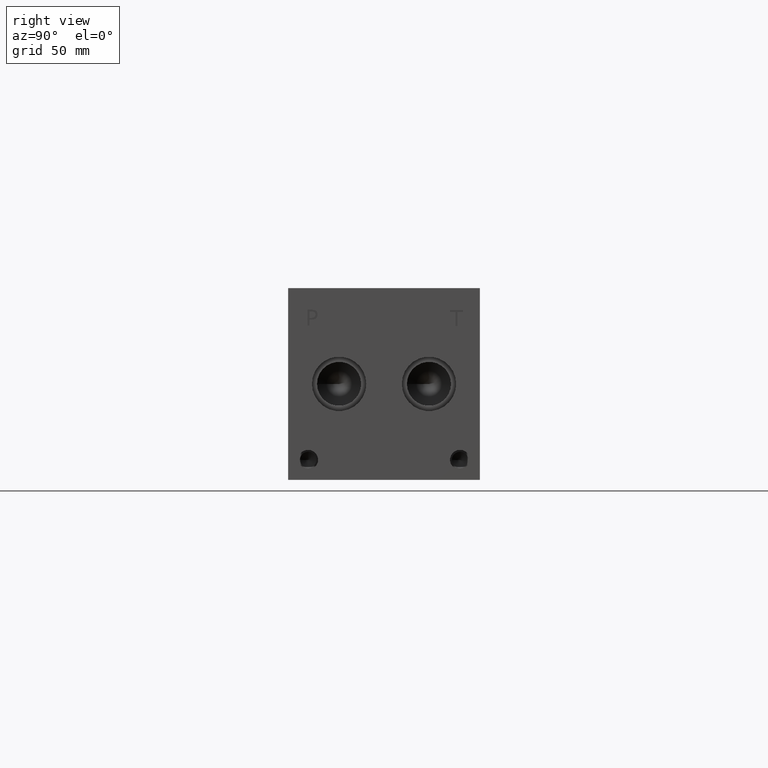
[diagram: clean part render]
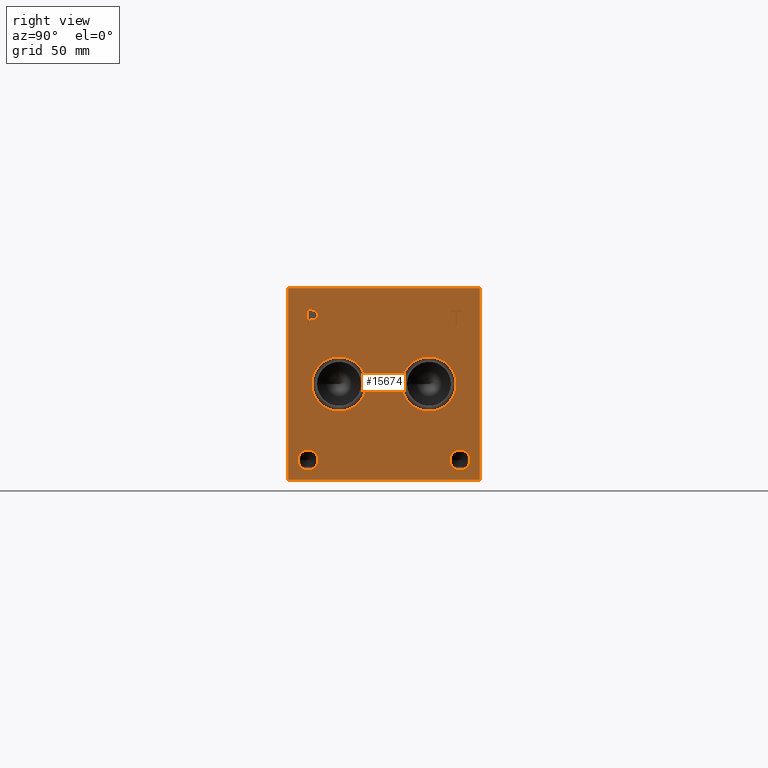
[diagram: same view with one face highlighted and labeled with its STEP entity id]
A machine part, right view. The second image highlights one B-rep face of the part: STEP entity #15674.
In plain terms, the highlighted planar face has unit normal (1, 0, 0).
Its self-contained STEP definition (entity closure, byte-faithful):
#211=CIRCLE('',#16333,10.795);
#212=CIRCLE('',#16334,10.795);
#213=CIRCLE('',#16335,10.795);
#214=CIRCLE('',#16336,10.795);
#215=CIRCLE('',#16337,3.9624);
#216=CIRCLE('',#16338,3.9624);
#217=CIRCLE('',#16339,3.9624);
#218=CIRCLE('',#16340,3.9624);
#639=FACE_BOUND('',#2626,.T.);
#640=FACE_BOUND('',#2627,.T.);
#641=FACE_BOUND('',#2628,.T.);
#642=FACE_BOUND('',#2629,.T.);
#643=FACE_BOUND('',#2630,.T.);
#644=FACE_BOUND('',#2631,.T.);
#1101=PLANE('',#16332);
#1739=FACE_OUTER_BOUND('',#2625,.T.);
#2625=EDGE_LOOP('',(#12997,#12998,#12999,#13000));
#2626=EDGE_LOOP('',(#13001,#13002));
#2627=EDGE_LOOP('',(#13003,#13004));
#2628=EDGE_LOOP('',(#13005,#13006));
#2629=EDGE_LOOP('',(#13007,#13008));
#2630=EDGE_LOOP('',(#13009,#13010,#13011,#13012,#13013,#13014,#13015,#13016));
#2631=EDGE_LOOP('',(#13017,#13018,#13019,#13020,#13021,#13022,#13023,#13024,
#13025));
#3250=LINE('',#22581,#4649);
#4099=LINE('',#26033,#5498);
#4102=LINE('',#26039,#5501);
#4105=LINE('',#26045,#5504);
#4108=LINE('',#26051,#5507);
#4111=LINE('',#26057,#5510);
#4115=LINE('',#26099,#5514);
#4116=LINE('',#26101,#5515);
#4117=LINE('',#26102,#5516);
#4118=LINE('',#26121,#5517);
#4119=LINE('',#26123,#5518);
#4120=LINE('',#26125,#5519);
#4121=LINE('',#26127,#5520);
#4122=LINE('',#26129,#5521);
#4123=LINE('',#26131,#5522);
#4124=LINE('',#26133,#5523);
#4125=LINE('',#26134,#5524);
#4649=VECTOR('',#17351,10.);
#5498=VECTOR('',#18830,10.);
#5501=VECTOR('',#18835,10.);
#5504=VECTOR('',#18840,10.);
#5507=VECTOR('',#18845,10.);
#5510=VECTOR('',#18850,10.);
#5514=VECTOR('',#18858,10.);
#5515=VECTOR('',#18859,10.);
#5516=VECTOR('',#18860,10.);
#5517=VECTOR('',#18877,10.);
#5518=VECTOR('',#18878,10.);
#5519=VECTOR('',#18879,10.);
#5520=VECTOR('',#18880,10.);
#5521=VECTOR('',#18881,10.);
#5522=VECTOR('',#18882,10.);
#5523=VECTOR('',#18883,10.);
#5524=VECTOR('',#18884,10.);
#6167=B_SPLINE_CURVE_WITH_KNOTS('',2,(#26000,#26001,#26002,#26003),
 .UNSPECIFIED.,.F.,.F.,(3,1,3),(0.,1.,2.),.UNSPECIFIED.);
#6169=B_SPLINE_CURVE_WITH_KNOTS('',2,(#26021,#26022,#26023,#26024),
 .UNSPECIFIED.,.F.,.F.,(3,1,3),(0.,1.,2.),.UNSPECIFIED.);
#6171=B_SPLINE_CURVE_WITH_KNOTS('',2,(#26070,#26071,#26072,#26073),
 .UNSPECIFIED.,.F.,.F.,(3,1,3),(0.,1.,2.),.UNSPECIFIED.);
#6173=B_SPLINE_CURVE_WITH_KNOTS('',2,(#26088,#26089,#26090,#26091),
 .UNSPECIFIED.,.F.,.F.,(3,1,3),(0.,1.,2.),.UNSPECIFIED.);
#6504=VERTEX_POINT('',#22578);
#6505=VERTEX_POINT('',#22580);
#7219=VERTEX_POINT('',#25998);
#7220=VERTEX_POINT('',#25999);
#7223=VERTEX_POINT('',#26020);
#7225=VERTEX_POINT('',#26032);
#7227=VERTEX_POINT('',#26038);
#7229=VERTEX_POINT('',#26044);
#7231=VERTEX_POINT('',#26050);
#7233=VERTEX_POINT('',#26056);
#7235=VERTEX_POINT('',#26069);
#7237=VERTEX_POINT('',#26098);
#7238=VERTEX_POINT('',#26100);
#7239=VERTEX_POINT('',#26103);
#7240=VERTEX_POINT('',#26104);
#7241=VERTEX_POINT('',#26107);
#7242=VERTEX_POINT('',#26108);
#7243=VERTEX_POINT('',#26111);
#7244=VERTEX_POINT('',#26112);
#7245=VERTEX_POINT('',#26115);
#7246=VERTEX_POINT('',#26116);
#7247=VERTEX_POINT('',#26119);
#7248=VERTEX_POINT('',#26120);
#7249=VERTEX_POINT('',#26122);
#7250=VERTEX_POINT('',#26124);
#7251=VERTEX_POINT('',#26126);
#7252=VERTEX_POINT('',#26128);
#7253=VERTEX_POINT('',#26130);
#7254=VERTEX_POINT('',#26132);
#8201=EDGE_CURVE('',#6504,#6505,#3250,.T.);
#9261=EDGE_CURVE('',#7219,#7220,#6167,.T.);
#9265=EDGE_CURVE('',#7223,#7219,#6169,.T.);
#9268=EDGE_CURVE('',#7225,#7223,#4099,.T.);
#9271=EDGE_CURVE('',#7227,#7225,#4102,.T.);
#9274=EDGE_CURVE('',#7229,#7227,#4105,.T.);
#9277=EDGE_CURVE('',#7231,#7229,#4108,.T.);
#9280=EDGE_CURVE('',#7233,#7231,#4111,.T.);
#9283=EDGE_CURVE('',#7235,#7233,#6171,.T.);
#9286=EDGE_CURVE('',#7220,#7235,#6173,.T.);
#9288=EDGE_CURVE('',#6504,#7237,#4115,.T.);
#9289=EDGE_CURVE('',#7237,#7238,#4116,.T.);
#9290=EDGE_CURVE('',#6505,#7238,#4117,.T.);
#9291=EDGE_CURVE('',#7239,#7240,#211,.T.);
#9292=EDGE_CURVE('',#7240,#7239,#212,.T.);
#9293=EDGE_CURVE('',#7241,#7242,#213,.T.);
#9294=EDGE_CURVE('',#7242,#7241,#214,.T.);
#9295=EDGE_CURVE('',#7243,#7244,#215,.T.);
#9296=EDGE_CURVE('',#7244,#7243,#216,.T.);
#9297=EDGE_CURVE('',#7245,#7246,#217,.T.);
#9298=EDGE_CURVE('',#7246,#7245,#218,.T.);
#9299=EDGE_CURVE('',#7247,#7248,#4118,.T.);
#9300=EDGE_CURVE('',#7248,#7249,#4119,.T.);
#9301=EDGE_CURVE('',#7249,#7250,#4120,.T.);
#9302=EDGE_CURVE('',#7250,#7251,#4121,.T.);
#9303=EDGE_CURVE('',#7251,#7252,#4122,.T.);
#9304=EDGE_CURVE('',#7252,#7253,#4123,.T.);
#9305=EDGE_CURVE('',#7253,#7254,#4124,.T.);
#9306=EDGE_CURVE('',#7254,#7247,#4125,.T.);
#12997=ORIENTED_EDGE('',*,*,#9288,.T.);
#12998=ORIENTED_EDGE('',*,*,#9289,.T.);
#12999=ORIENTED_EDGE('',*,*,#9290,.F.);
#13000=ORIENTED_EDGE('',*,*,#8201,.F.);
#13001=ORIENTED_EDGE('',*,*,#9291,.T.);
#13002=ORIENTED_EDGE('',*,*,#9292,.T.);
#13003=ORIENTED_EDGE('',*,*,#9293,.T.);
#13004=ORIENTED_EDGE('',*,*,#9294,.T.);
#13005=ORIENTED_EDGE('',*,*,#9295,.T.);
#13006=ORIENTED_EDGE('',*,*,#9296,.T.);
#13007=ORIENTED_EDGE('',*,*,#9297,.T.);
#13008=ORIENTED_EDGE('',*,*,#9298,.T.);
#13009=ORIENTED_EDGE('',*,*,#9299,.T.);
#13010=ORIENTED_EDGE('',*,*,#9300,.T.);
#13011=ORIENTED_EDGE('',*,*,#9301,.T.);
#13012=ORIENTED_EDGE('',*,*,#9302,.T.);
#13013=ORIENTED_EDGE('',*,*,#9303,.T.);
#13014=ORIENTED_EDGE('',*,*,#9304,.T.);
#13015=ORIENTED_EDGE('',*,*,#9305,.T.);
#13016=ORIENTED_EDGE('',*,*,#9306,.T.);
#13017=ORIENTED_EDGE('',*,*,#9261,.T.);
#13018=ORIENTED_EDGE('',*,*,#9286,.T.);
#13019=ORIENTED_EDGE('',*,*,#9283,.T.);
#13020=ORIENTED_EDGE('',*,*,#9280,.T.);
#13021=ORIENTED_EDGE('',*,*,#9277,.T.);
#13022=ORIENTED_EDGE('',*,*,#9274,.T.);
#13023=ORIENTED_EDGE('',*,*,#9271,.T.);
#13024=ORIENTED_EDGE('',*,*,#9268,.T.);
#13025=ORIENTED_EDGE('',*,*,#9265,.T.);
#15674=ADVANCED_FACE('',(#1739,#639,#640,#641,#642,#643,#644),#1101,.T.);
#16332=AXIS2_PLACEMENT_3D('',#26097,#18856,#18857);
#16333=AXIS2_PLACEMENT_3D('',#26105,#18861,#18862);
#16334=AXIS2_PLACEMENT_3D('',#26106,#18863,#18864);
#16335=AXIS2_PLACEMENT_3D('',#26109,#18865,#18866);
#16336=AXIS2_PLACEMENT_3D('',#26110,#18867,#18868);
#16337=AXIS2_PLACEMENT_3D('',#26113,#18869,#18870);
#16338=AXIS2_PLACEMENT_3D('',#26114,#18871,#18872);
#16339=AXIS2_PLACEMENT_3D('',#26117,#18873,#18874);
#16340=AXIS2_PLACEMENT_3D('',#26118,#18875,#18876);
#17351=DIRECTION('',(0.,0.,1.));
#18830=DIRECTION('',(0.,1.,0.));
#18835=DIRECTION('',(0.,0.,1.));
#18840=DIRECTION('',(0.,-1.,0.));
#18845=DIRECTION('',(0.,0.,-1.));
#18850=DIRECTION('',(0.,-1.,0.));
#18856=DIRECTION('center_axis',(1.,0.,0.));
#18857=DIRECTION('ref_axis',(0.,1.,0.));
#18858=DIRECTION('',(0.,1.,0.));
#18859=DIRECTION('',(0.,0.,1.));
#18860=DIRECTION('',(0.,1.,0.));
#18861=DIRECTION('center_axis',(-1.,0.,0.));
#18862=DIRECTION('ref_axis',(0.,1.,0.));
#18863=DIRECTION('center_axis',(-1.,0.,0.));
#18864=DIRECTION('ref_axis',(0.,1.,0.));
#18865=DIRECTION('center_axis',(-1.,0.,0.));
#18866=DIRECTION('ref_axis',(0.,1.,0.));
#18867=DIRECTION('center_axis',(-1.,0.,0.));
#18868=DIRECTION('ref_axis',(0.,1.,0.));
#18869=DIRECTION('center_axis',(-1.,0.,0.));
#18870=DIRECTION('ref_axis',(0.,1.,0.));
#18871=DIRECTION('center_axis',(-1.,0.,0.));
#18872=DIRECTION('ref_axis',(0.,1.,0.));
#18873=DIRECTION('center_axis',(-1.,0.,0.));
#18874=DIRECTION('ref_axis',(0.,1.,0.));
#18875=DIRECTION('center_axis',(-1.,0.,0.));
#18876=DIRECTION('ref_axis',(0.,1.,0.));
#18877=DIRECTION('',(0.,-1.,0.));
#18878=DIRECTION('',(0.,0.,1.));
#18879=DIRECTION('',(0.,-1.,0.));
#18880=DIRECTION('',(0.,0.,1.));
#18881=DIRECTION('',(0.,1.,0.));
#18882=DIRECTION('',(0.,0.,-1.));
#18883=DIRECTION('',(0.,-1.,0.));
#18884=DIRECTION('',(0.,0.,-1.));
#22578=CARTESIAN_POINT('',(269.875,0.,0.));
#22580=CARTESIAN_POINT('',(269.875,0.,76.2));
#22581=CARTESIAN_POINT('',(269.875,0.,0.));
#25998=CARTESIAN_POINT('',(269.875,10.9363672023594,67.1677681439707));
#25999=CARTESIAN_POINT('',(269.875,11.692809654532,65.649737372604));
#26000=CARTESIAN_POINT('Ctrl Pts',(269.875,10.9363672023594,67.1677681439707));
#26001=CARTESIAN_POINT('Ctrl Pts',(269.875,11.2914320268486,66.9259123939564));
#26002=CARTESIAN_POINT('Ctrl Pts',(269.875,11.692809654532,66.1797616758269));
#26003=CARTESIAN_POINT('Ctrl Pts',(269.875,11.692809654532,65.649737372604));
#26020=CARTESIAN_POINT('',(269.875,9.27425215438831,67.5639999046326));
#26021=CARTESIAN_POINT('Ctrl Pts',(269.875,9.27425215438831,67.5639999046326));
#26022=CARTESIAN_POINT('Ctrl Pts',(269.875,9.84029752676236,67.5639999046326));
#26023=CARTESIAN_POINT('Ctrl Pts',(269.875,10.632761048086,67.3787486918556));
#26024=CARTESIAN_POINT('Ctrl Pts',(269.875,10.9363672023594,67.1677681439707));
#26032=CARTESIAN_POINT('',(269.875,7.67903337769779,67.5639999046326));
#26033=CARTESIAN_POINT('',(269.875,3.83951668884889,67.5639999046326));
#26038=CARTESIAN_POINT('',(269.875,7.67903337769779,61.214));
#26039=CARTESIAN_POINT('',(269.875,7.67903337769779,30.607));
#26044=CARTESIAN_POINT('',(269.875,8.52295556923729,61.214));
#26045=CARTESIAN_POINT('',(269.875,4.26147778461864,61.214));
#26050=CARTESIAN_POINT('',(269.875,8.52295556923729,63.5810988299279));
#26051=CARTESIAN_POINT('',(269.875,8.52295556923729,31.7905494149639));
#26056=CARTESIAN_POINT('',(269.875,9.23823108523723,63.5810988299279));
#26057=CARTESIAN_POINT('',(269.875,4.61911554261861,63.5810988299279));
#26069=CARTESIAN_POINT('',(269.875,11.1370560162011,64.2397698086904));
#26070=CARTESIAN_POINT('Ctrl Pts',(269.875,11.1370560162011,64.2397698086904));
#26071=CARTESIAN_POINT('Ctrl Pts',(269.875,10.8077205268198,63.9155801863307));
#26072=CARTESIAN_POINT('Ctrl Pts',(269.875,9.91748553208609,63.5810988299279));
#26073=CARTESIAN_POINT('Ctrl Pts',(269.875,9.23823108523723,63.5810988299279));
#26088=CARTESIAN_POINT('Ctrl Pts',(269.875,11.692809654532,65.649737372604));
#26089=CARTESIAN_POINT('Ctrl Pts',(269.875,11.692809654532,65.2380680108774));
#26090=CARTESIAN_POINT('Ctrl Pts',(269.875,11.3994952343018,64.4970631597695));
#26091=CARTESIAN_POINT('Ctrl Pts',(269.875,11.1370560162011,64.2397698086904));
#26097=CARTESIAN_POINT('Origin',(269.875,0.,0.));
#26098=CARTESIAN_POINT('',(269.875,76.2,0.));
#26099=CARTESIAN_POINT('',(269.875,0.,0.));
#26100=CARTESIAN_POINT('',(269.875,76.2,76.2));
#26101=CARTESIAN_POINT('',(269.875,76.2,0.));
#26102=CARTESIAN_POINT('',(269.875,0.,76.2));
#26103=CARTESIAN_POINT('',(269.875,31.0388,38.1));
#26104=CARTESIAN_POINT('',(269.875,9.4488,38.1));
#26105=CARTESIAN_POINT('Origin',(269.875,20.2438,38.1));
#26106=CARTESIAN_POINT('Origin',(269.875,20.2438,38.1));
#26107=CARTESIAN_POINT('',(269.875,66.7512,38.1));
#26108=CARTESIAN_POINT('',(269.875,45.1612,38.1));
#26109=CARTESIAN_POINT('Origin',(269.875,55.9562,38.1));
#26110=CARTESIAN_POINT('Origin',(269.875,55.9562,38.1));
#26111=CARTESIAN_POINT('',(269.875,11.8872,7.9248));
#26112=CARTESIAN_POINT('',(269.875,3.9624,7.9248));
#26113=CARTESIAN_POINT('Origin',(269.875,7.9248,7.9248));
#26114=CARTESIAN_POINT('Origin',(269.875,7.9248,7.9248));
#26115=CARTESIAN_POINT('',(269.875,72.2376,7.9248));
#26116=CARTESIAN_POINT('',(269.875,64.3128,7.9248));
#26117=CARTESIAN_POINT('Origin',(269.875,68.2752,7.9248));
#26118=CARTESIAN_POINT('Origin',(269.875,68.2752,7.9248));
#26119=CARTESIAN_POINT('',(269.875,67.262915271453,61.11875));
#26120=CARTESIAN_POINT('',(269.875,66.4189930799135,61.11875));
#26121=CARTESIAN_POINT('',(269.875,33.6314576357265,61.11875));
#26122=CARTESIAN_POINT('',(269.875,66.4189930799135,66.7174533194816));
#26123=CARTESIAN_POINT('',(269.875,66.4189930799135,30.559375));
#26124=CARTESIAN_POINT('',(269.875,64.2886041329784,66.7174533194816));
#26125=CARTESIAN_POINT('',(269.875,33.2094965399567,66.7174533194816));
#26126=CARTESIAN_POINT('',(269.875,64.2886041329784,67.4687499046326));
#26127=CARTESIAN_POINT('',(269.875,64.2886041329784,33.3587266597408));
#26128=CARTESIAN_POINT('',(269.875,69.3933042183881,67.4687499046326));
#26129=CARTESIAN_POINT('',(269.875,32.1443020664892,67.4687499046326));
#26130=CARTESIAN_POINT('',(269.875,69.3933042183881,66.7174533194816));
#26131=CARTESIAN_POINT('',(269.875,69.3933042183881,33.7343749523163));
#26132=CARTESIAN_POINT('',(269.875,67.262915271453,66.7174533194816));
#26133=CARTESIAN_POINT('',(269.875,34.696652109194,66.7174533194816));
#26134=CARTESIAN_POINT('',(269.875,67.262915271453,33.3587266597408));